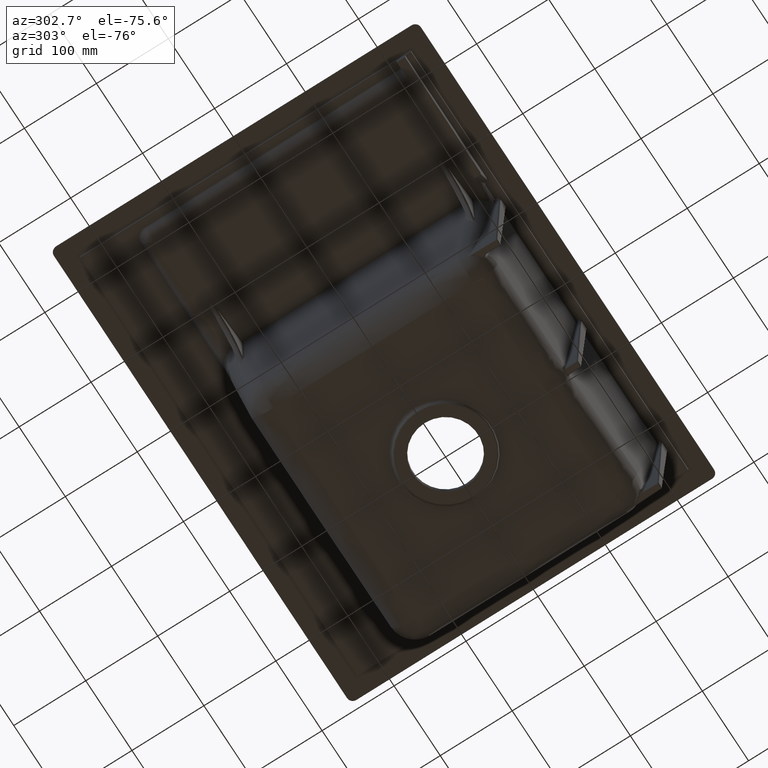
[diagram: clean part render]
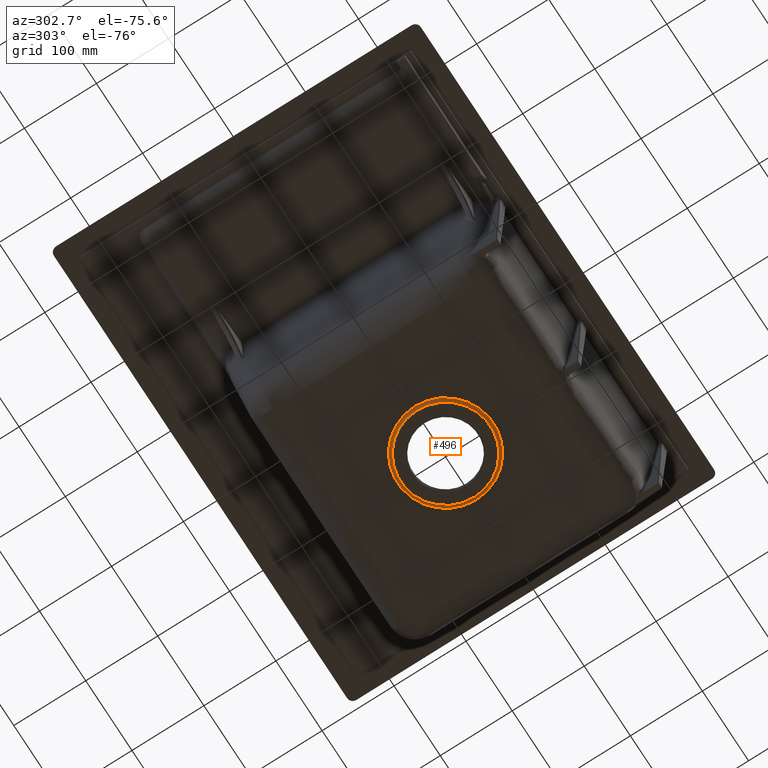
[diagram: same view with one face highlighted and labeled with its STEP entity id]
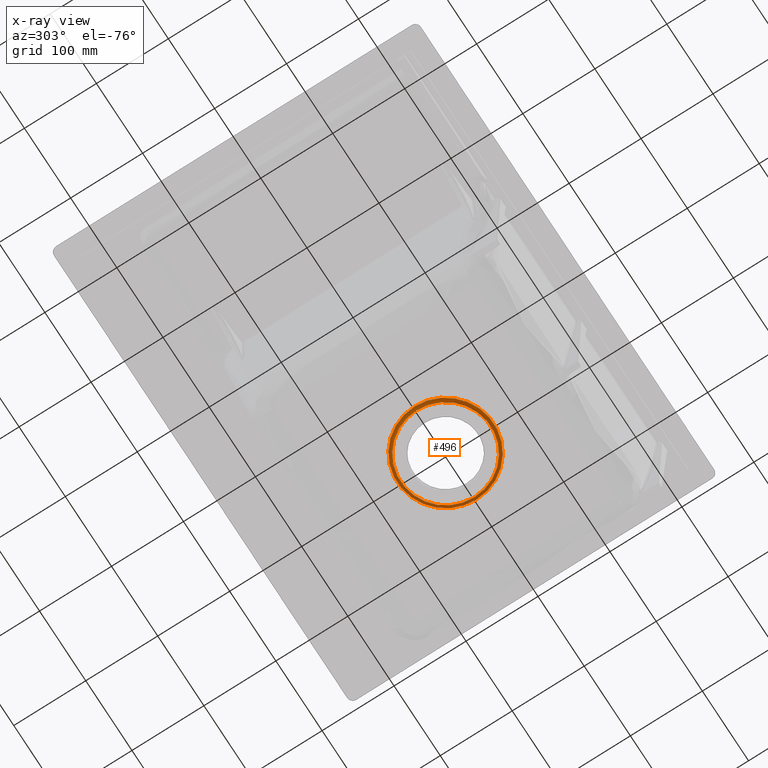
[diagram: x-ray of the same camera — body ghosted, the highlighted face saturated]
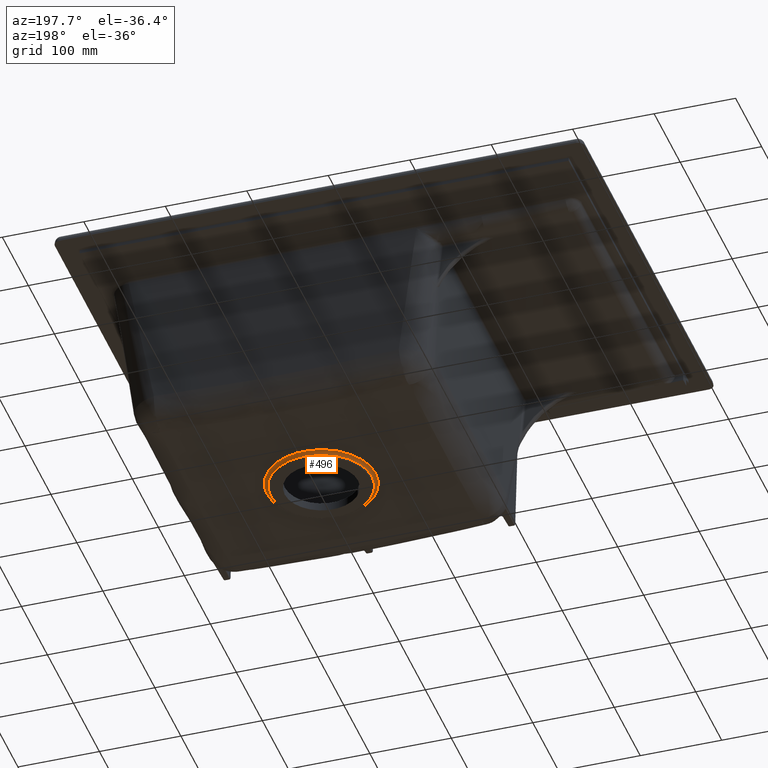
[diagram: same view with one face highlighted and labeled with its STEP entity id]
A machine part, auxiliary view. The second image highlights one B-rep face of the part: STEP entity #496.
The next image is the same camera in x-ray: the body ghosted, the highlighted face saturated — about 0% of this face is hidden behind the body in this view.
A second angle (auxiliary view) of the same face is appended — the face is thin or edge-on in the first view.
In plain terms, the highlighted toroidal blend (fillet) surface has major radius 67.1719 mm and minor (blend) radius 5 mm.
Its self-contained STEP definition (entity closure, byte-faithful):
#76=TOROIDAL_SURFACE('',#3945,67.1718536691421,5.);
#91=FACE_BOUND('',#1051,.T.);
#92=FACE_BOUND('',#1052,.T.);
#186=CIRCLE('',#3938,62.3661333174706);
#187=CIRCLE('',#3944,66.8230713004215);
#496=ADVANCED_FACE('',(#91,#92),#76,.F.);
#1051=EDGE_LOOP('',(#1828));
#1052=EDGE_LOOP('',(#1829));
#1828=ORIENTED_EDGE('',*,*,#3335,.F.);
#1829=ORIENTED_EDGE('',*,*,#3319,.T.);
#2963=VERTEX_POINT('',#7896);
#2976=VERTEX_POINT('',#7975);
#3319=EDGE_CURVE('',#2963,#2963,#186,.T.);
#3335=EDGE_CURVE('',#2976,#2976,#187,.T.);
#3938=AXIS2_PLACEMENT_3D('',#7895,#4290,#4291);
#3944=AXIS2_PLACEMENT_3D('',#7974,#4310,#4311);
#3945=AXIS2_PLACEMENT_3D('',#7976,#4312,#4313);
#4290=DIRECTION('',(0.,0.,1.));
#4291=DIRECTION('',(1.,0.,0.));
#4310=DIRECTION('',(0.,0.,1.));
#4311=DIRECTION('',(-1.,0.,0.));
#4312=DIRECTION('',(0.,0.,-1.));
#4313=DIRECTION('',(1.,0.,0.));
#7895=CARTESIAN_POINT('',(0.,0.,2.171858294401));
#7896=CARTESIAN_POINT('',(62.366133317471,0.,2.171858294401));
#7974=CARTESIAN_POINT('',(0.,0.,5.77944236970249));
#7975=CARTESIAN_POINT('',(-66.8230713004215,0.,5.77944236970249));
#7976=CARTESIAN_POINT('',(0.,0.,0.791622118403501));